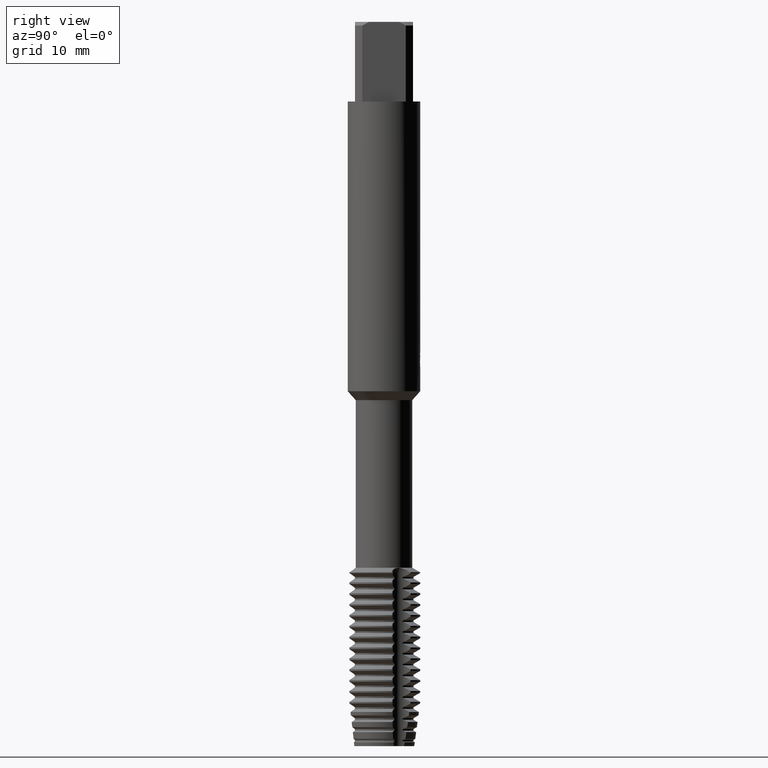
[diagram: clean part render]
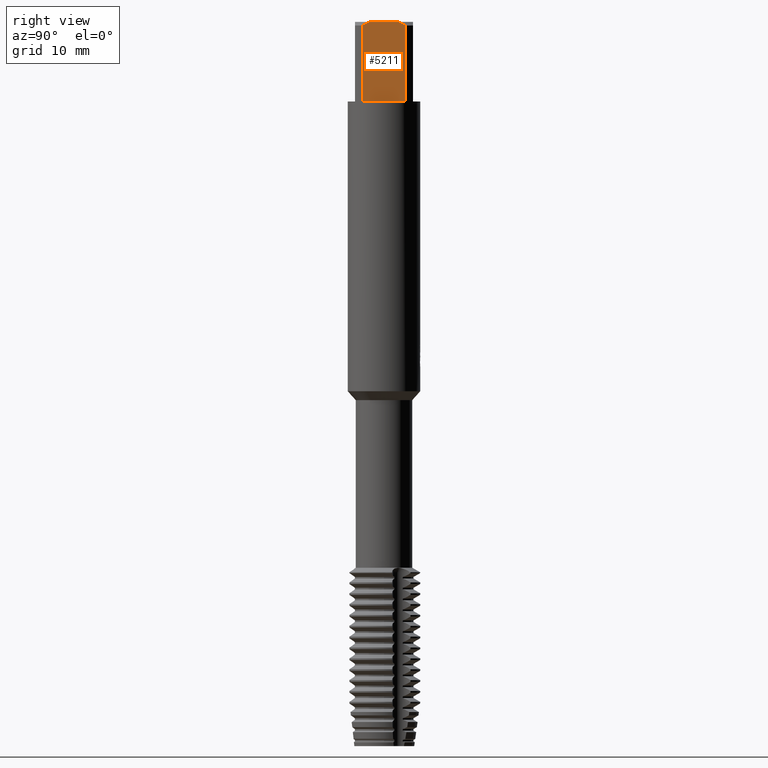
[diagram: same view with one face highlighted and labeled with its STEP entity id]
A machine part, right view. The second image highlights one B-rep face of the part: STEP entity #5211.
In plain terms, the highlighted planar face has unit normal (1, 0, 0).
Its self-contained STEP definition (entity closure, byte-faithful):
#2145=VERTEX_POINT('',#6226);
#2237=EDGE_CURVE('',#2319,#3291,#6329,.T.);
#2319=VERTEX_POINT('',#6423);
#2687=EDGE_CURVE('',#6041,#2319,#6828,.T.);
#3243=VERTEX_POINT('',#7427);
#3291=VERTEX_POINT('',#7477);
#3607=VERTEX_POINT('',#7825);
#3735=EDGE_CURVE('',#3243,#3607,#7963,.T.);
#4647=EDGE_CURVE('',#3291,#3243,#8941,.T.);
#4727=EDGE_CURVE('',#2145,#6041,#9031,.T.);
#5211=ADVANCED_FACE('',(#9563),#9564,.T.);
#5923=EDGE_CURVE('',#3607,#2145,#10348,.T.);
#6041=VERTEX_POINT('',#10475);
#6226=CARTESIAN_POINT('',(4.0,2.06155281280883,0.0));
#6329=LINE('',#10830,#10831);
#6423=CARTESIAN_POINT('',(4.0,3.0,-11.0));
#6828=LINE('',#11627,#11628);
#7427=CARTESIAN_POINT('',(4.0,-3.0,-0.5));
#7477=CARTESIAN_POINT('',(4.0,-3.0,-11.0));
#7825=CARTESIAN_POINT('',(4.0,-2.06155281280883,0.0));
#7963=(B_SPLINE_CURVE(2,(#13683,#13684,#13685),.UNSPECIFIED.,.F.,.F.)B_SPLINE_CURVE_WITH_KNOTS((3,3),(0.0,1.06374198224989),.UNSPECIFIED.)RATIONAL_B_SPLINE_CURVE((1.0,1.00491513263524,1.0))BOUNDED_CURVE()REPRESENTATION_ITEM('')GEOMETRIC_REPRESENTATION_ITEM()CURVE());
#8941=LINE('',#15436,#15437);
#9031=(B_SPLINE_CURVE(2,(#15588,#15589,#15590),.UNSPECIFIED.,.F.,.F.)B_SPLINE_CURVE_WITH_KNOTS((3,3),(0.0,1.06374198224989),.UNSPECIFIED.)RATIONAL_B_SPLINE_CURVE((1.0,1.00491513263524,1.0))BOUNDED_CURVE()REPRESENTATION_ITEM('')GEOMETRIC_REPRESENTATION_ITEM()CURVE());
#9563=FACE_OUTER_BOUND('',#16469,.T.);
#9564=PLANE('',#16470);
#10348=LINE('',#17973,#17974);
#10475=CARTESIAN_POINT('',(4.0,3.0,-0.5));
#10830=CARTESIAN_POINT('',(4.0,0.0,-11.0));
#10831=VECTOR('',#18596,1.0);
#11627=CARTESIAN_POINT('',(4.0,3.0,-5.75));
#11628=VECTOR('',#19163,1.0);
#13683=CARTESIAN_POINT('',(4.0,-3.0,-0.5));
#13684=CARTESIAN_POINT('',(4.0,-2.50608042779412,-0.203648256676475));
#13685=CARTESIAN_POINT('',(4.0,-2.06155281280883,5.55111512312578E-017));
#15436=CARTESIAN_POINT('',(4.0,-3.0,-5.75));
#15437=VECTOR('',#21504,1.0);
#15588=CARTESIAN_POINT('',(4.0,2.06155281280883,5.55111512312578E-017));
#15589=CARTESIAN_POINT('',(4.0,2.50608042779412,-0.203648256676475));
#15590=CARTESIAN_POINT('',(4.0,3.0,-0.5));
#16469=EDGE_LOOP('',(#22219,#22220,#22221,#22222,#22223,#22224));
#16470=AXIS2_PLACEMENT_3D('',#22225,#22226,#22227);
#17973=CARTESIAN_POINT('',(4.0,1.125,0.0));
#17974=VECTOR('',#23241,1.0);
#18596=DIRECTION('',(0.0,-1.0,0.0));
#19163=DIRECTION('',(0.0,0.0,-1.0));
#21504=DIRECTION('',(-0.0,-0.0,1.0));
#22219=ORIENTED_EDGE('',*,*,#2687,.F.);
#22220=ORIENTED_EDGE('',*,*,#4727,.F.);
#22221=ORIENTED_EDGE('',*,*,#5923,.F.);
#22222=ORIENTED_EDGE('',*,*,#3735,.F.);
#22223=ORIENTED_EDGE('',*,*,#4647,.F.);
#22224=ORIENTED_EDGE('',*,*,#2237,.F.);
#22225=CARTESIAN_POINT('',(4.0,0.0,-5.0));
#22226=DIRECTION('',(1.0,0.0,0.0));
#22227=DIRECTION('',(0.0,0.0,-1.0));
#23241=DIRECTION('',(-0.0,1.0,0.0));